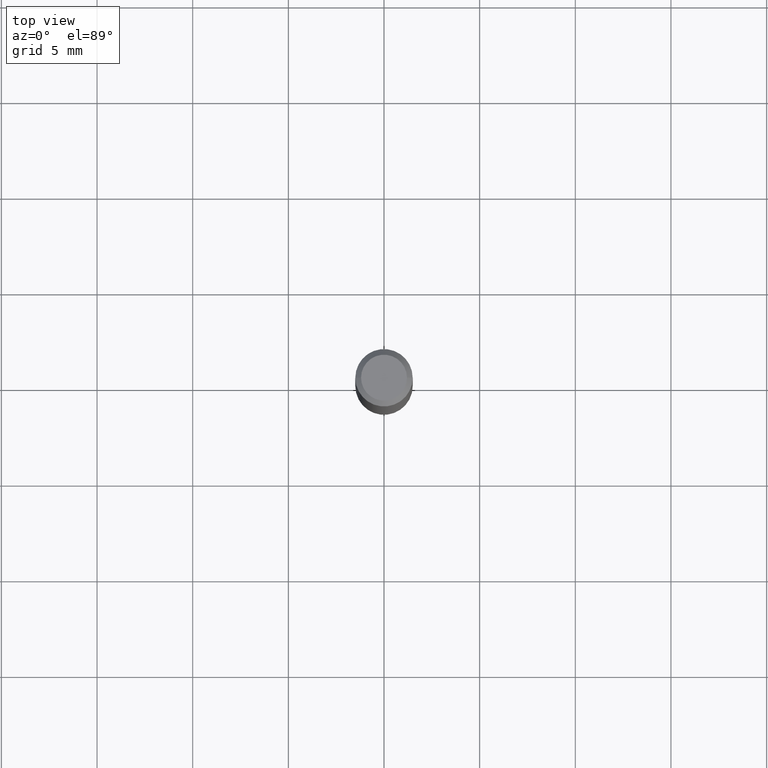
[diagram: clean part render]
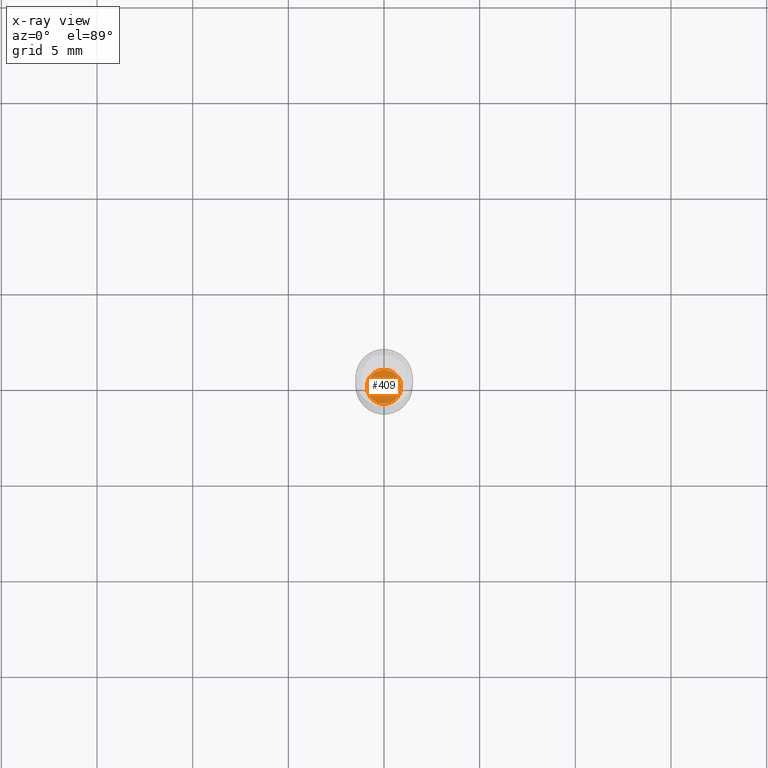
[diagram: x-ray — body ghosted, one internal face saturated and labeled with its STEP entity id]
A machine part, top view, then the same camera in x-ray: the body is ghosted and one INTERNAL B-rep face — a face not visible from any outside direction — is saturated and labeled: STEP entity #409.
In plain terms, the highlighted planar face has unit normal (-0, 0, 1).
Its self-contained STEP definition (entity closure, byte-faithful):
#2 = CARTESIAN_POINT ( 'NONE',  ( 2.676565608369632355E-29, -3.821426325363822773E-15, -1.094500000000000028 ) ) ;
#16 = AXIS2_PLACEMENT_3D ( 'NONE', #40, #490, #147 ) ;
#40 = CARTESIAN_POINT ( 'NONE',  ( 2.676565608369632355E-29, -3.821426325363822773E-15, -1.094500000000000028 ) ) ;
#44 = CARTESIAN_POINT ( 'NONE',  ( -2.934360530474147503E-30, -8.074637746509678818E-15, -1.094500000000000028 ) ) ;
#49 = EDGE_CURVE ( 'NONE', #420, #92, #453, .T. ) ;
#63 = AXIS2_PLACEMENT_3D ( 'NONE', #44, #188, #103 ) ;
#64 = CARTESIAN_POINT ( 'NONE',  ( -0.03515000000000000069, -3.569021326570036253E-15, -1.094500000000000028 ) ) ;
#75 = AXIS2_PLACEMENT_3D ( 'NONE', #2, #302, #426 ) ;
#79 = ORIENTED_EDGE ( 'NONE', *, *, #49, .F. ) ;
#92 = VERTEX_POINT ( 'NONE', #64 ) ;
#103 = DIRECTION ( 'NONE',  ( 1.000000000000000000, -6.982962677686265922E-15, 4.876176775795935793E-29 ) ) ;
#114 = CIRCLE ( 'NONE', #75, 0.03515000000000000069 ) ;
#147 = DIRECTION ( 'NONE',  ( 1.000000000000000000, -6.982962677686265133E-15, 0.000000000000000000 ) ) ;
#179 = FACE_OUTER_BOUND ( 'NONE', #253, .T. ) ;
#188 = DIRECTION ( 'NONE',  ( -2.438088387897960049E-29, 3.491481338843145188E-15, 1.000000000000000000 ) ) ;
#253 = EDGE_LOOP ( 'NONE', ( #79, #349 ) ) ;
#260 = CARTESIAN_POINT ( 'NONE',  ( 0.03515000000000000069, -4.066877463484495641E-15, -1.094500000000000028 ) ) ;
#302 = DIRECTION ( 'NONE',  ( -2.445468806185136597E-29, 3.491481338843145583E-15, 1.000000000000000000 ) ) ;
#349 = ORIENTED_EDGE ( 'NONE', *, *, #482, .F. ) ;
#409 = ADVANCED_FACE ( 'NONE', ( #179 ), #489, .F. ) ;
#420 = VERTEX_POINT ( 'NONE', #260 ) ;
#426 = DIRECTION ( 'NONE',  ( 1.000000000000000000, -6.982962677686265133E-15, 0.000000000000000000 ) ) ;
#453 = CIRCLE ( 'NONE', #16, 0.03515000000000000069 ) ;
#482 = EDGE_CURVE ( 'NONE', #92, #420, #114, .T. ) ;
#489 = PLANE ( 'NONE',  #63 ) ;
#490 = DIRECTION ( 'NONE',  ( -2.445468806185136597E-29, 3.491481338843145583E-15, 1.000000000000000000 ) ) ;